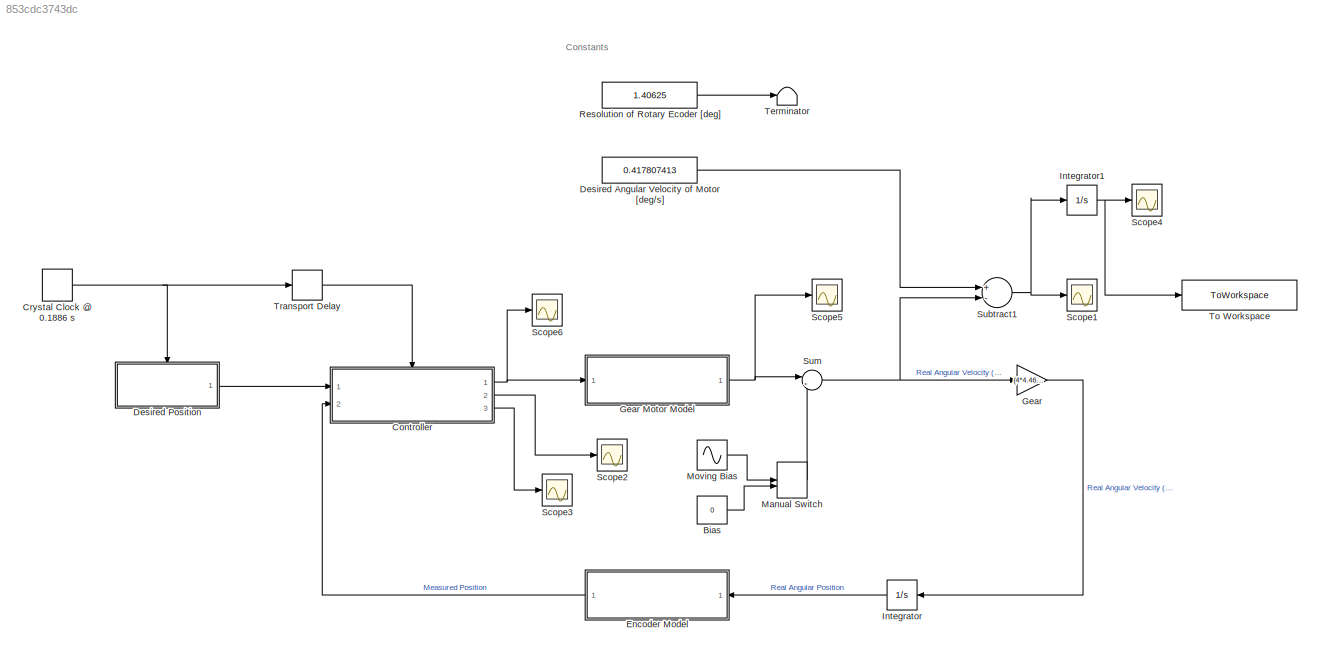
MODEL slx_853cdc3743dc
KIND model
CONFIG AbsTol = auto
CONFIG FixedStep = 0.01
CONFIG MaxStep = auto
CONFIG MinStep = auto
CONFIG RelTol = 1e-3
CONFIG SampleTimeConstraint = Unconstrained
CONFIG Solver = ode45
CONFIG SolverMode = Auto
CONFIG SolverName = ode45
CONFIG StartTime = 0
CONFIG StopTime = 1000
BLOCK [Constant] Bias
  Value = 0
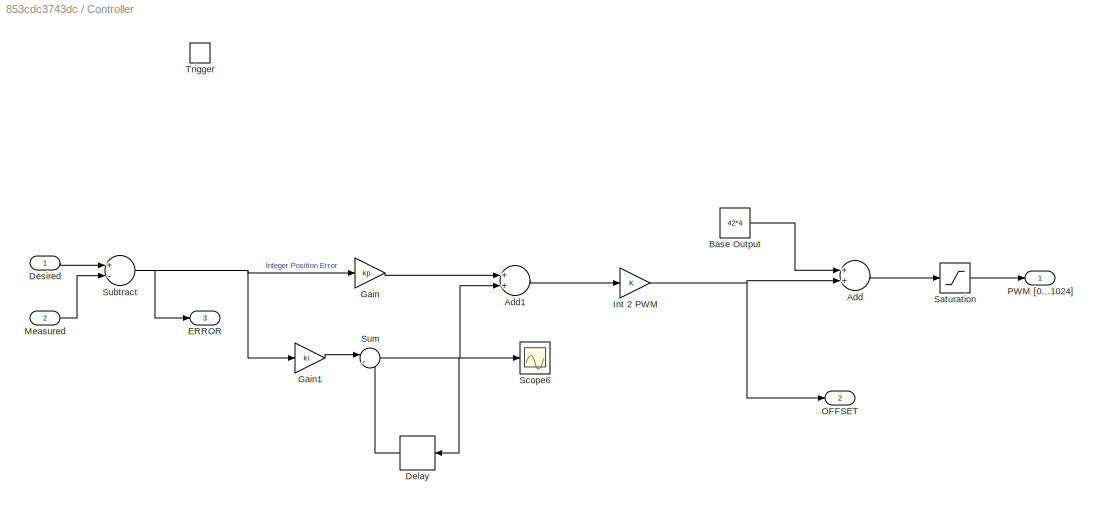
BLOCK [SubSystem] Controller
  Ports = [2, 3, 0, 1]
  RequestExecContextInheritance = off
  TreatAsAtomicUnit = on
BLOCK [Sum] Controller/Add
  InputSameDT = off
  OutDataTypeStr = Inherit: Inherit via internal rule
  Ports = [2, 1]
  SaturateOnIntegerOverflow = off
BLOCK [Sum] Controller/Add1
  InputSameDT = off
  OutDataTypeStr = Inherit: Inherit via internal rule
  Ports = [2, 1]
  SaturateOnIntegerOverflow = off
BLOCK [Constant] Controller/Base Output
  Value = 42*4
BLOCK [Delay] Controller/Delay
  DelayLength = 1
  InputPortMap = u0
  Ports = [1, 1]
BLOCK [Inport] Controller/Desired
  IconDisplay = Port number
BLOCK [Outport] Controller/ERROR
  IconDisplay = Port number
  InitialOutput = [0]
  Port = 3
BLOCK [Gain] Controller/Gain
  Gain = kp
  OutDataTypeStr = Inherit: Inherit via internal rule
  ParamDataTypeStr = Inherit: Inherit via internal rule
  SaturateOnIntegerOverflow = off
BLOCK [Gain] Controller/Gain1
  Gain = ki
  OutDataTypeStr = Inherit: Inherit via internal rule
  ParamDataTypeStr = Inherit: Inherit via internal rule
  SaturateOnIntegerOverflow = off
BLOCK [Gain] Controller/Int 2 PWM
  OutDataTypeStr = Inherit: Inherit via internal rule
  ParamDataTypeStr = Inherit: Inherit via internal rule
  SaturateOnIntegerOverflow = off
BLOCK [Inport] Controller/Measured
  IconDisplay = Port number
  Port = 2
BLOCK [Outport] Controller/OFFSET
  IconDisplay = Port number
  InitialOutput = [0]
  Port = 2
BLOCK [Outport] Controller/PWM [0...1024]
  IconDisplay = Port number
  InitialOutput = [0]
BLOCK [Saturate] Controller/Saturation
  InputPortMap = u0
  LowerLimit = 0
  Ports = [1, 1]
  UpperLimit = 1024
BLOCK [Scope] Controller/Scope6
  Floating = off
  LimitDataPoints = off
  NumInputPorts = 1
  Ports = [1]
  SaveName = ScopeData5
  TimeRange = 100
BLOCK [Sum] Controller/Subtract
  InputSameDT = off
  Inputs = +-
  OutDataTypeStr = Inherit: Inherit via internal rule
  Ports = [2, 1]
  SaturateOnIntegerOverflow = off
BLOCK [Sum] Controller/Sum
  IconShape = round
  InputSameDT = off
  Inputs = |++
  OutDataTypeStr = Inherit: Inherit via internal rule
  Ports = [2, 1]
  SaturateOnIntegerOverflow = off
BLOCK [TriggerPort] Controller/Trigger
  Ports = []
  StatesWhenEnabling = held
BLOCK [DiscretePulseGenerator] Crystal Clock @ 0.1886 s
  Period = 0.188600031806
  Ports = [0, 1]
  PulseType = Time based
  PulseWidth = 5
BLOCK [Constant] Desired Angular Velocity of Motor [deg//s]
  Value = 0.417807413
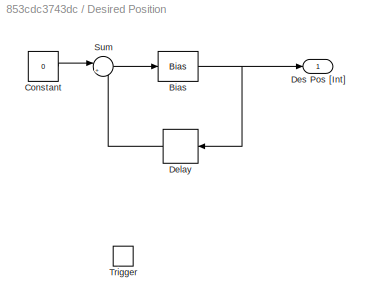
BLOCK [SubSystem] Desired Position
  Ports = [0, 1, 0, 1]
  RequestExecContextInheritance = off
  TreatAsAtomicUnit = on
BLOCK [Bias] Desired Position/Bias
  Bias = 1
  SaturateOnIntegerOverflow = off
BLOCK [Constant] Desired Position/Constant
  Value = 0
BLOCK [Delay] Desired Position/Delay
  DelayLength = 1
  InputPortMap = u0
  Ports = [1, 1]
BLOCK [Outport] Desired Position/Des Pos [Int]
  IconDisplay = Port number
  InitialOutput = [0]
BLOCK [Sum] Desired Position/Sum
  IconShape = round
  InputSameDT = off
  Inputs = |++
  OutDataTypeStr = Inherit: Inherit via internal rule
  Ports = [2, 1]
  SaturateOnIntegerOverflow = off
BLOCK [TriggerPort] Desired Position/Trigger
  Ports = []
  StatesWhenEnabling = held
BLOCK [ModelReference] Encoder Model
  CopyOfModelName = encoder.slx
  DefaultDataLogging = on
  ModelNameDialog = encoder.slx
  ModelReferenceVersion = 1.5
  Ports = [1, 1]
BLOCK [Gain] Gear
  Gain = (4*4.4615384615)
  OutDataTypeStr = Inherit: Inherit via internal rule
  ParamDataTypeStr = Inherit: Inherit via internal rule
  SaturateOnIntegerOverflow = off
BLOCK [ModelReference] Gear Motor Model
  CopyOfModelName = gear_motor.slx
  DefaultDataLogging = on
  ModelNameDialog = gear_motor.slx
  ModelReferenceVersion = 1.24
  Ports = [1, 1]
BLOCK [Integrator] Integrator
  Ports = [1, 1]
BLOCK [Integrator] Integrator1
  Ports = [1, 1]
BLOCK [ManualSwitch] Manual Switch
  CurrentSetting = 0
BLOCK [Sin] Moving Bias
  Amplitude = 0.2
  Frequency = 0.2/(2*pi)
  Ports = [0, 1]
  SampleTime = 0
BLOCK [Constant] Resolution of Rotary Ecoder [deg]
  Value = 1.40625
BLOCK [Scope] Scope1
  Floating = off
  LimitDataPoints = off
  NumInputPorts = 1
  Ports = [1]
  SaveName = ScopeData1
  TimeRange = 300
BLOCK [Scope] Scope2
  Floating = off
  LimitDataPoints = off
  NumInputPorts = 1
  Ports = [1]
  SaveName = ScopeData2
  TimeRange = 100
BLOCK [Scope] Scope3
  Floating = off
  LimitDataPoints = off
  NumInputPorts = 1
  Ports = [1]
  SaveName = ScopeData6
BLOCK [Scope] Scope4
  Floating = off
  LimitDataPoints = off
  NumInputPorts = 1
  Ports = [1]
  TimeRange = 300
  ZoomMode = xonly
BLOCK [Scope] Scope5
  Floating = off
  LimitDataPoints = off
  NumInputPorts = 1
  Ports = [1]
  SaveName = ScopeData3
  TimeRange = 300
BLOCK [Scope] Scope6
  Floating = off
  LimitDataPoints = off
  NumInputPorts = 1
  Ports = [1]
  SaveName = ScopeData4
  TimeRange = 100
BLOCK [Sum] Subtract1
  InputSameDT = off
  Inputs = +-
  OutDataTypeStr = Inherit: Inherit via internal rule
  Ports = [2, 1]
  SaturateOnIntegerOverflow = off
BLOCK [Sum] Sum
  IconShape = round
  InputSameDT = off
  Inputs = |++
  OutDataTypeStr = Inherit: Inherit via internal rule
  Ports = [2, 1]
  SaturateOnIntegerOverflow = off
BLOCK [Terminator] Terminator
BLOCK [ToWorkspace] To Workspace
  FixptAsFi = on
  MaxDataPoints = inf
  Ports = [1]
  SampleTime = -1
  Save2DSignal = 3-D array (concatenate along third dimension)
  VariableName = err_pos
BLOCK [TransportDelay] Transport Delay
  DelayTime = 0.01
  Ports = [1, 1]
ANNOTATION (root): Constants
LINE Bias:1 -> Manual Switch:2
LINE Controller/Add1:1 -> Controller/Int 2 PWM:1
LINE Controller/Add:1 -> Controller/Saturation:1
LINE Controller/Base Output:1 -> Controller/Add:1
LINE Controller/Delay:1 -> Controller/Sum:2
LINE Controller/Desired:1 -> Controller/Subtract:1
LINE Controller/Gain1:1 -> Controller/Sum:1
LINE Controller/Gain:1 -> Controller/Add1:1
NET Controller/Int 2 PWM:1 -> Controller/Add:2, Controller/OFFSET:1
LINE Controller/Measured:1 -> Controller/Subtract:2
LINE Controller/Saturation:1 -> Controller/PWM [0...1024]:1
NET Controller/Subtract:1 -> Controller/ERROR:1, Controller/Gain1:1, Controller/Gain:1
NET Controller/Sum:1 -> Controller/Add1:2, Controller/Delay:1, Controller/Scope6:1
NET Controller:1 -> Gear Motor Model:1, Scope6:1
LINE Controller:2 -> Scope2:1
LINE Controller:3 -> Scope3:1
NET Crystal Clock @ 0.1886 s:1 -> Desired Position:trigger, Transport Delay:1
LINE Desired Angular Velocity of Motor [deg//s]:1 -> Subtract1:1
NET Desired Position/Bias:1 -> Desired Position/Delay:1, Desired Position/Des Pos [Int]:1
LINE Desired Position/Constant:1 -> Desired Position/Sum:1
LINE Desired Position/Delay:1 -> Desired Position/Sum:2
LINE Desired Position/Sum:1 -> Desired Position/Bias:1
LINE Desired Position:1 -> Controller:1
LINE Encoder Model:1 -> Controller:2
NET Gear Motor Model:1 -> Scope5:1, Sum:1
LINE Gear:1 -> Integrator:1
NET Integrator1:1 -> Scope4:1, To Workspace:1
LINE Integrator:1 -> Encoder Model:1
LINE Manual Switch:1 -> Sum:2
LINE Moving Bias:1 -> Manual Switch:1
LINE Resolution of Rotary Ecoder [deg]:1 -> Terminator:1
NET Subtract1:1 -> Integrator1:1, Scope1:1
NET Sum:1 -> Gear:1, Subtract1:2
LINE Transport Delay:1 -> Controller:trigger
note: NET lines group one-source signal fan-out (src -> all destinations, sorted); 1:1 wires keep LINE
